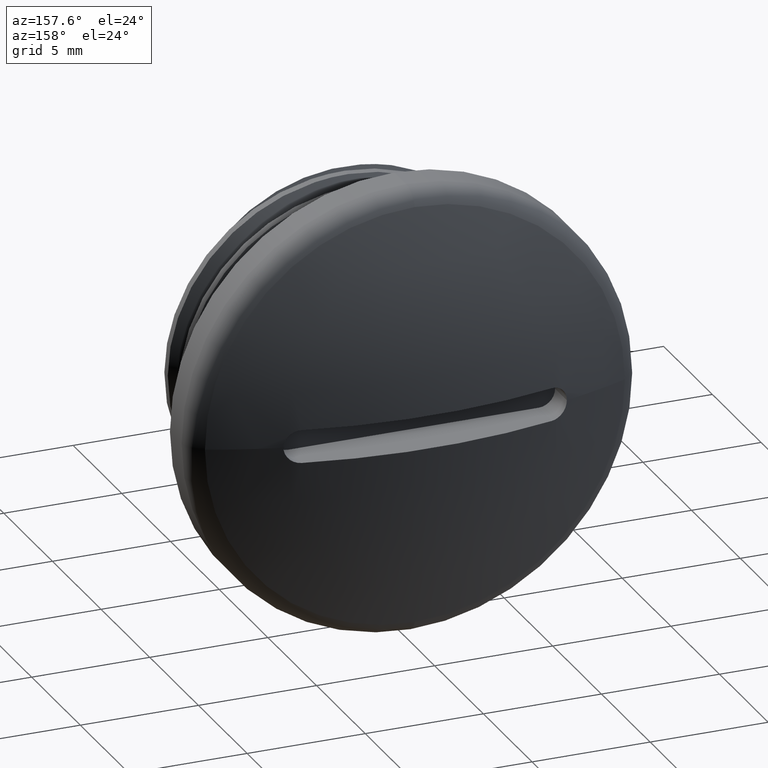
[diagram: clean part render]
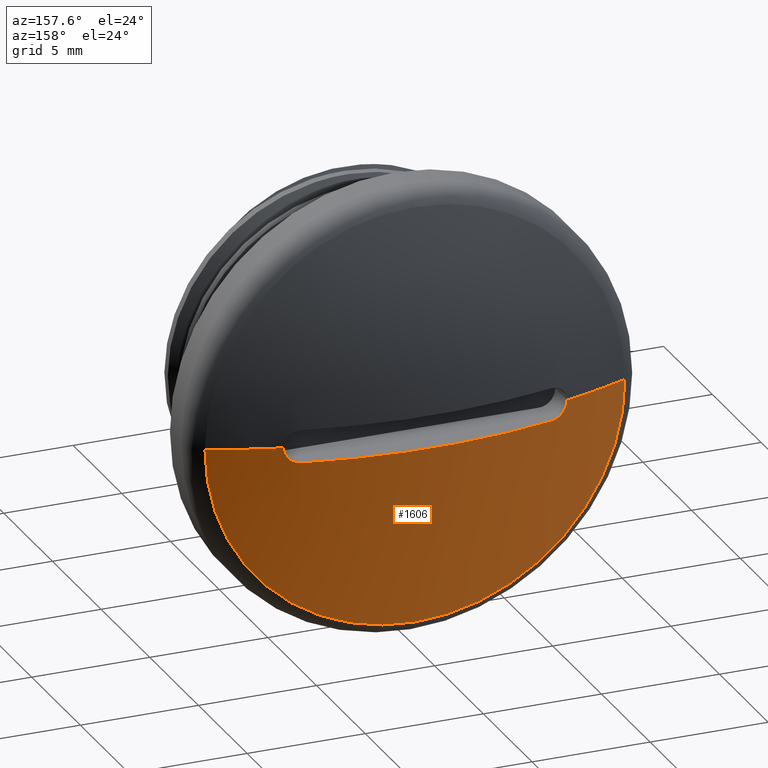
[diagram: same view with one face highlighted and labeled with its STEP entity id]
A machine part, auxiliary view. The second image highlights one B-rep face of the part: STEP entity #1606.
In plain terms, the highlighted spherical surface has radius 22.8486 mm.
Its self-contained STEP definition (entity closure, byte-faithful):
#1 = VERTEX_POINT ( 'NONE', #42 ) ;
#8 = VERTEX_POINT ( 'NONE', #48 ) ;
#17 = VERTEX_POINT ( 'NONE', #57 ) ;
#26 = VERTEX_POINT ( 'NONE', #71 ) ;
#28 = VERTEX_POINT ( 'NONE', #69 ) ;
#32 = VERTEX_POINT ( 'NONE', #85 ) ;
#42 = CARTESIAN_POINT ( 'NONE',  ( 8.889040541108345300, 7.971550136318401600, -1.088593504615939300E-015 ) ) ;
#48 = CARTESIAN_POINT ( 'NONE',  ( 0.0000000000000000000, 7.971550136318403400, -8.889040541108345300 ) ) ;
#57 = CARTESIAN_POINT ( 'NONE',  ( -8.889040541108345300, 7.971550136318401600, 0.0000000000000000000 ) ) ;
#69 = CARTESIAN_POINT ( 'NONE',  ( 5.976161009388451200, 8.976159827201755100, 0.0000000000000000000 ) ) ;
#71 = CARTESIAN_POINT ( 'NONE',  ( -5.323838990611549500, 9.131626130673087300, -0.6999999999999999600 ) ) ;
#85 = CARTESIAN_POINT ( 'NONE',  ( 5.276161009388451900, 9.143001340278772200, -0.6999999999999999600 ) ) ;
#102 = CARTESIAN_POINT ( 'NONE',  ( -6.023838990611549700, 8.963184311223109500, 0.0000000000000000000 ) ) ;
#103 = CARTESIAN_POINT ( 'NONE',  ( 0.0000000000000000000, -13.07707256964489600, 0.0000000000000000000 ) ) ;
#104 = DIRECTION ( 'NONE',  ( -0.0000000000000000000, 0.0000000000000000000, 1.000000000000000000 ) ) ;
#105 = CARTESIAN_POINT ( 'NONE',  ( 0.0000000000000000000, 7.971550136318403400, 0.0000000000000000000 ) ) ;
#106 = CARTESIAN_POINT ( 'NONE',  ( -6.023838990611549700, 8.963184311223109500, 0.0000000000000000000 ) ) ;
#107 = DIRECTION ( 'NONE',  ( 0.0000000000000000000, 0.0000000000000000000, -1.000000000000000000 ) ) ;
#108 = DIRECTION ( 'NONE',  ( -0.0000000000000000000, -1.000000000000000000, -0.0000000000000000000 ) ) ;
#109 = DIRECTION ( 'NONE',  ( 0.0000000000000000000, 0.0000000000000000000, -1.000000000000000000 ) ) ;
#111 = CARTESIAN_POINT ( 'NONE',  ( -6.023838990611550600, 8.963184311223109500, -0.09377725284409538200 ) ) ;
#113 = CARTESIAN_POINT ( 'NONE',  ( 0.0000000000000000000, 7.971550136318403400, 0.0000000000000000000 ) ) ;
#114 = DIRECTION ( 'NONE',  ( 1.000000000000000000, 0.0000000000000000000, 0.0000000000000000000 ) ) ;
#117 = DIRECTION ( 'NONE',  ( -0.0000000000000000000, -1.000000000000000000, -0.0000000000000000000 ) ) ;
#118 = CARTESIAN_POINT ( 'NONE',  ( -6.005024498256892300, 8.967730193162767100, -0.1858585763807171800 ) ) ;
#119 = CARTESIAN_POINT ( 'NONE',  ( -5.880412328877027600, 8.997807474869642200, -0.4342134279709665100 ) ) ;
#120 = CARTESIAN_POINT ( 'NONE',  ( -5.685689600178904800, 9.044735855107951700, -0.6263584149259379100 ) ) ;
#121 = CARTESIAN_POINT ( 'NONE',  ( -5.323838990611549500, 9.131626130673087300, -0.6999999999999999600 ) ) ;
#127 = CARTESIAN_POINT ( 'NONE',  ( -5.933362008683981300, 8.985029958523117700, -0.3564250225225255600 ) ) ;
#128 = CARTESIAN_POINT ( 'NONE',  ( -5.506087104763638600, 9.087937861081925900, -0.6999999999999997300 ) ) ;
#142 = VERTEX_POINT ( 'NONE', #102 ) ;
#181 = CIRCLE ( 'NONE', #182, 22.83789744174059100 ) ;
#182 = AXIS2_PLACEMENT_3D ( 'NONE', #1312, #1313, #1311 ) ;
#306 = AXIS2_PLACEMENT_3D ( 'NONE', #105, #108, #109 ) ;
#308 = CIRCLE ( 'NONE', #306, 8.889040541108345300 ) ;
#312 = CIRCLE ( 'NONE', #319, 22.84862270596329400 ) ;
#314 = CIRCLE ( 'NONE', #321, 8.889040541108345300 ) ;
#319 = AXIS2_PLACEMENT_3D ( 'NONE', #103, #104, #114 ) ;
#321 = AXIS2_PLACEMENT_3D ( 'NONE', #113, #117, #107 ) ;
#352 = ORIENTED_EDGE ( 'NONE', *, *, #1364, .F. ) ;
#389 = EDGE_LOOP ( 'NONE', ( #554, #397, #473, #621, #352, #466, #401 ) ) ;
#397 = ORIENTED_EDGE ( 'NONE', *, *, #1390, .T. ) ;
#401 = ORIENTED_EDGE ( 'NONE', *, *, #1385, .F. ) ;
#466 = ORIENTED_EDGE ( 'NONE', *, *, #1370, .T. ) ;
#473 = ORIENTED_EDGE ( 'NONE', *, *, #1368, .F. ) ;
#554 = ORIENTED_EDGE ( 'NONE', *, *, #1381, .T. ) ;
#621 = ORIENTED_EDGE ( 'NONE', *, *, #1366, .F. ) ;
#1068 = FACE_OUTER_BOUND ( 'NONE', #389, .T. ) ;
#1219 = DIRECTION ( 'NONE',  ( -1.000000000000000000, 0.0000000000000000000, 0.0000000000000000000 ) ) ;
#1230 = CARTESIAN_POINT ( 'NONE',  ( 0.0000000000000000000, -13.07707256964489600, 0.0000000000000000000 ) ) ;
#1243 = DIRECTION ( 'NONE',  ( -0.0000000000000000000, -0.0000000000000000000, -1.000000000000000000 ) ) ;
#1265 = SPHERICAL_SURFACE ( 'NONE', #1519, 22.84862270596329400 ) ;
#1311 = DIRECTION ( 'NONE',  ( 1.000000000000000000, 0.0000000000000000000, 0.0000000000000000000 ) ) ;
#1312 = CARTESIAN_POINT ( 'NONE',  ( 0.0000000000000000000, -13.07707256964489600, -0.6999999999999999600 ) ) ;
#1313 = DIRECTION ( 'NONE',  ( 0.0000000000000000000, -0.0000000000000000000, 1.000000000000000000 ) ) ;
#1332 = DIRECTION ( 'NONE',  ( -1.224646799147353200E-016, 0.0000000000000000000, -1.000000000000000000 ) ) ;
#1334 = CARTESIAN_POINT ( 'NONE',  ( 0.0000000000000000000, -13.07707256964489600, 0.0000000000000000000 ) ) ;
#1335 = DIRECTION ( 'NONE',  ( -1.000000000000000000, 0.0000000000000000000, 1.224646799147353200E-016 ) ) ;
#1364 = EDGE_CURVE ( 'NONE', #142, #17, #312, .T. ) ;
#1366 = EDGE_CURVE ( 'NONE', #17, #8, #314, .T. ) ;
#1368 = EDGE_CURVE ( 'NONE', #8, #1, #308, .T. ) ;
#1370 = EDGE_CURVE ( 'NONE', #142, #26, #1581, .T. ) ;
#1381 = EDGE_CURVE ( 'NONE', #32, #28, #1582, .T. ) ;
#1385 = EDGE_CURVE ( 'NONE', #32, #26, #181, .T. ) ;
#1390 = EDGE_CURVE ( 'NONE', #28, #1, #1497, .T. ) ;
#1470 = CARTESIAN_POINT ( 'NONE',  ( 5.276161009388451900, 9.143001340278772200, -0.6999999999999999600 ) ) ;
#1471 = CARTESIAN_POINT ( 'NONE',  ( 5.456718783624650900, 9.100095482094445700, -0.6824017071628492000 ) ) ;
#1476 = CARTESIAN_POINT ( 'NONE',  ( 5.367350173167841900, 9.121348455038067000, -0.7000000000000001800 ) ) ;
#1478 = CARTESIAN_POINT ( 'NONE',  ( 5.625119254551401000, 9.059995140369347100, -0.6135970525586766900 ) ) ;
#1479 = CARTESIAN_POINT ( 'NONE',  ( 5.702442699513214000, 9.041554520296653400, -0.5627055417107618100 ) ) ;
#1480 = CARTESIAN_POINT ( 'NONE',  ( 5.897726618979149300, 8.994938890110994100, -0.3702304917271120300 ) ) ;
#1481 = CARTESIAN_POINT ( 'NONE',  ( 5.976161009388451200, 8.976159827201755100, 0.0000000000000000000 ) ) ;
#1482 = CARTESIAN_POINT ( 'NONE',  ( 5.976161009388451200, 8.976159827201751500, -0.1876013594300670900 ) ) ;
#1497 = CIRCLE ( 'NONE', #1498, 22.84862270596329400 ) ;
#1498 = AXIS2_PLACEMENT_3D ( 'NONE', #1334, #1332, #1335 ) ;
#1519 = AXIS2_PLACEMENT_3D ( 'NONE', #1230, #1243, #1219 ) ;
#1581 = B_SPLINE_CURVE_WITH_KNOTS ( 'NONE', 3,
 ( #106, #111, #118, #127, #119, #120, #128, #121 ),
 .UNSPECIFIED., .F., .F.,
 ( 4, 2, 2, 4 ),
 ( 0.0000000000000000000, 0.0002772911734369671900, 0.0005545823468739343900, 0.001109164693747867700 ),
 .UNSPECIFIED. ) ;
#1582 = B_SPLINE_CURVE_WITH_KNOTS ( 'NONE', 3,
 ( #1470, #1476, #1471, #1478, #1479, #1480, #1482, #1481 ),
 .UNSPECIFIED., .F., .F.,
 ( 4, 2, 2, 4 ),
 ( 0.0000000000000000000, 0.0002772215389095023300, 0.0005544430778190046600, 0.001108886155638009300 ),
 .UNSPECIFIED. ) ;
#1606 = ADVANCED_FACE ( 'NONE', ( #1068 ), #1265, .T. ) ;